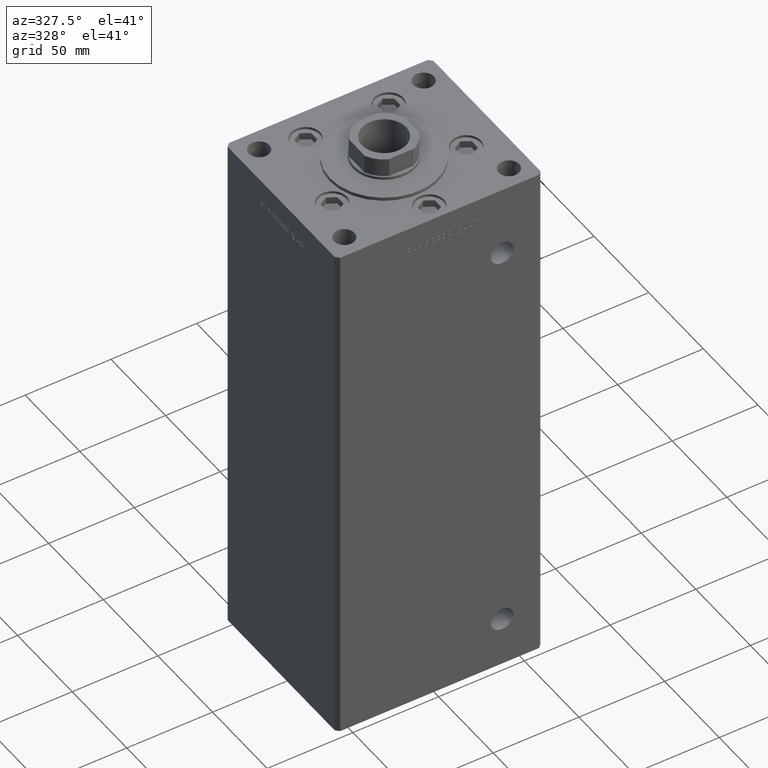
[diagram: clean part render]
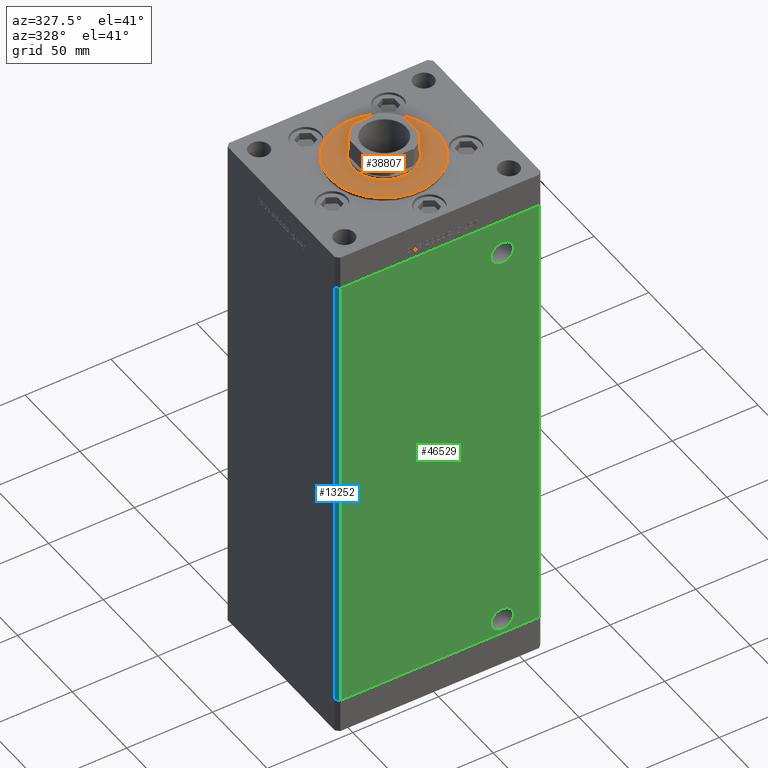
[diagram: same view with three faces highlighted in distinct colors, each labeled with its STEP entity id]
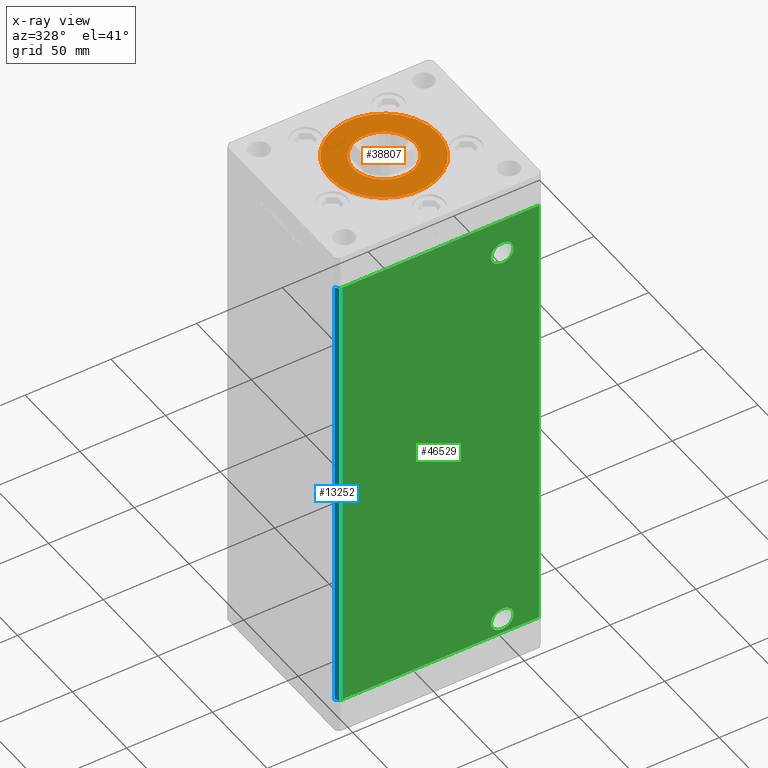
[diagram: x-ray of the same camera — body ghosted, the three highlighted faces saturated]
A machine part, auxiliary view with three faces highlighted in distinct colors.
The next image is the same camera in x-ray (body ghosted, the three faces saturated) — at least one of them is partly hidden behind the body in this view.
Their STEP definitions:

[orange] entity #38807 — the highlighted planar face has unit normal (0, 0, 1).
#1723 = CIRCLE ( 'NONE', #27851, 18.00000000000000000 ) ;
#5282 = EDGE_CURVE ( 'NONE', #35273, #38310, #17439, .T. ) ;
#6371 = DIRECTION ( 'NONE',  ( 1.000000000000000000, 0.000000000000000000, 0.000000000000000000 ) ) ;
#9182 = VERTEX_POINT ( 'NONE', #37426 ) ;
#11420 = ORIENTED_EDGE ( 'NONE', *, *, #5282, .T. ) ;
#13288 = DIRECTION ( 'NONE',  ( 0.000000000000000000, 0.000000000000000000, 1.000000000000000000 ) ) ;
#13539 = EDGE_CURVE ( 'NONE', #41007, #9182, #1723, .T. ) ;
#17439 = CIRCLE ( 'NONE', #24159, 31.50000000000000000 ) ;
#20567 = AXIS2_PLACEMENT_3D ( 'NONE', #23217, #39281, #6371 ) ;
#22363 = CARTESIAN_POINT ( 'NONE',  ( 0.000000000000000000, -6.938893903907228378E-15, 2.000000000000000000 ) ) ;
#22764 = DIRECTION ( 'NONE',  ( 1.000000000000000000, 0.000000000000000000, 0.000000000000000000 ) ) ;
#23217 = CARTESIAN_POINT ( 'NONE',  ( 0.000000000000000000, -6.938893903907228378E-15, 2.000000000000000000 ) ) ;
#24159 = AXIS2_PLACEMENT_3D ( 'NONE', #26135, #30854, #34812 ) ;
#24902 = EDGE_LOOP ( 'NONE', ( #35949, #38065 ) ) ;
#26135 = CARTESIAN_POINT ( 'NONE',  ( 0.000000000000000000, -6.938893903907228378E-15, 2.000000000000000000 ) ) ;
#26970 = CARTESIAN_POINT ( 'NONE',  ( 0.000000000000000000, -6.938893903907228378E-15, 2.000000000000000000 ) ) ;
#27174 = EDGE_CURVE ( 'NONE', #38310, #35273, #28110, .T. ) ;
#27851 = AXIS2_PLACEMENT_3D ( 'NONE', #26970, #35132, #22764 ) ;
#28110 = CIRCLE ( 'NONE', #20567, 31.50000000000000000 ) ;
#28848 = DIRECTION ( 'NONE',  ( 1.000000000000000000, 0.000000000000000000, 0.000000000000000000 ) ) ;
#29359 = CARTESIAN_POINT ( 'NONE',  ( 0.000000000000000000, -6.938893903907228378E-15, 2.000000000000000000 ) ) ;
#30182 = AXIS2_PLACEMENT_3D ( 'NONE', #29359, #13288, #28848 ) ;
#30521 = FACE_OUTER_BOUND ( 'NONE', #38542, .T. ) ;
#30854 = DIRECTION ( 'NONE',  ( 0.000000000000000000, 0.000000000000000000, 1.000000000000000000 ) ) ;
#34063 = CARTESIAN_POINT ( 'NONE',  ( -18.00000000000000000, -4.734529665441992555E-15, 2.000000000000000000 ) ) ;
#34224 = PLANE ( 'NONE',  #35143 ) ;
#34812 = DIRECTION ( 'NONE',  ( 1.000000000000000000, 0.000000000000000000, 0.000000000000000000 ) ) ;
#35132 = DIRECTION ( 'NONE',  ( 0.000000000000000000, 0.000000000000000000, 1.000000000000000000 ) ) ;
#35143 = AXIS2_PLACEMENT_3D ( 'NONE', #22363, #41614, #50305 ) ;
#35273 = VERTEX_POINT ( 'NONE', #44564 ) ;
#35376 = CARTESIAN_POINT ( 'NONE',  ( 31.50000000000000000, -3.081256486593065689E-15, 2.000000000000000000 ) ) ;
#35949 = ORIENTED_EDGE ( 'NONE', *, *, #44857, .F. ) ;
#37426 = CARTESIAN_POINT ( 'NONE',  ( 18.00000000000000000, -6.938893903907228378E-15, 2.000000000000000000 ) ) ;
#37482 = ORIENTED_EDGE ( 'NONE', *, *, #27174, .T. ) ;
#37662 = FACE_BOUND ( 'NONE', #24902, .T. ) ;
#38065 = ORIENTED_EDGE ( 'NONE', *, *, #13539, .F. ) ;
#38310 = VERTEX_POINT ( 'NONE', #35376 ) ;
#38542 = EDGE_LOOP ( 'NONE', ( #11420, #37482 ) ) ;
#38807 = ADVANCED_FACE ( 'NONE', ( #37662, #30521 ), #34224, .T. ) ;
#39281 = DIRECTION ( 'NONE',  ( 0.000000000000000000, 0.000000000000000000, 1.000000000000000000 ) ) ;
#41007 = VERTEX_POINT ( 'NONE', #34063 ) ;
#41614 = DIRECTION ( 'NONE',  ( 0.000000000000000000, 0.000000000000000000, 1.000000000000000000 ) ) ;
#44564 = CARTESIAN_POINT ( 'NONE',  ( -31.50000000000000000, -6.938893903907228378E-15, 2.000000000000000000 ) ) ;
#44857 = EDGE_CURVE ( 'NONE', #9182, #41007, #49578, .T. ) ;
#49578 = CIRCLE ( 'NONE', #30182, 18.00000000000000000 ) ;
#50305 = DIRECTION ( 'NONE',  ( 1.000000000000000000, 0.000000000000000000, -0.000000000000000000 ) ) ;

[blue] entity #13252 — the highlighted planar face has unit normal (0.7071, 0.7071, 0).
#4102 = LINE ( 'NONE', #21218, #34359 ) ;
#8977 = CARTESIAN_POINT ( 'NONE',  ( -59.99999999999998579, -49.00000000000000000, 0.000000000000000000 ) ) ;
#9659 = DIRECTION ( 'NONE',  ( 0.7071067811865475727, 0.7071067811865475727, -0.000000000000000000 ) ) ;
#10038 = EDGE_CURVE ( 'NONE', #14847, #20280, #16626, .T. ) ;
#10562 = CARTESIAN_POINT ( 'NONE',  ( -57.99999999999997868, -51.00000000000000711, 0.000000000000000000 ) ) ;
#11087 = VERTEX_POINT ( 'NONE', #49511 ) ;
#11677 = EDGE_CURVE ( 'NONE', #11756, #11087, #46478, .T. ) ;
#11756 = VERTEX_POINT ( 'NONE', #15864 ) ;
#12722 = EDGE_CURVE ( 'NONE', #11087, #20280, #46427, .T. ) ;
#13252 = ADVANCED_FACE ( 'NONE', ( #45782 ), #50250, .F. ) ;
#14137 = CARTESIAN_POINT ( 'NONE',  ( -59.99999999999998579, -49.00000000000000000, 268.5000000000000000 ) ) ;
#14313 = VECTOR ( 'NONE', #50426, 1000.000000000000114 ) ;
#14353 = AXIS2_PLACEMENT_3D ( 'NONE', #14137, #9659, #46554 ) ;
#14847 = VERTEX_POINT ( 'NONE', #24404 ) ;
#15864 = CARTESIAN_POINT ( 'NONE',  ( -59.99999999999998579, -49.00000000000000000, 268.5000000000000000 ) ) ;
#16626 = LINE ( 'NONE', #8977, #48801 ) ;
#18827 = ORIENTED_EDGE ( 'NONE', *, *, #10038, .T. ) ;
#19163 = ORIENTED_EDGE ( 'NONE', *, *, #39847, .T. ) ;
#20280 = VERTEX_POINT ( 'NONE', #10562 ) ;
#21218 = CARTESIAN_POINT ( 'NONE',  ( -59.99999999999998579, -49.00000000000000000, 268.5000000000000000 ) ) ;
#24404 = CARTESIAN_POINT ( 'NONE',  ( -59.99999999999998579, -49.00000000000000000, 0.000000000000000000 ) ) ;
#26382 = DIRECTION ( 'NONE',  ( -0.000000000000000000, -0.000000000000000000, -1.000000000000000000 ) ) ;
#26895 = CARTESIAN_POINT ( 'NONE',  ( -57.99999999999997868, -51.00000000000000711, 268.5000000000000000 ) ) ;
#29008 = DIRECTION ( 'NONE',  ( 0.7071067811865474617, -0.7071067811865474617, 0.000000000000000000 ) ) ;
#32875 = VECTOR ( 'NONE', #26382, 1000.000000000000000 ) ;
#34359 = VECTOR ( 'NONE', #44676, 1000.000000000000000 ) ;
#37070 = ORIENTED_EDGE ( 'NONE', *, *, #11677, .F. ) ;
#39847 = EDGE_CURVE ( 'NONE', #11756, #14847, #4102, .T. ) ;
#42662 = ORIENTED_EDGE ( 'NONE', *, *, #12722, .F. ) ;
#44676 = DIRECTION ( 'NONE',  ( -0.000000000000000000, -0.000000000000000000, -1.000000000000000000 ) ) ;
#45223 = EDGE_LOOP ( 'NONE', ( #18827, #42662, #37070, #19163 ) ) ;
#45782 = FACE_OUTER_BOUND ( 'NONE', #45223, .T. ) ;
#46216 = CARTESIAN_POINT ( 'NONE',  ( -59.99999999999998579, -49.00000000000000000, 268.5000000000000000 ) ) ;
#46427 = LINE ( 'NONE', #26895, #32875 ) ;
#46478 = LINE ( 'NONE', #46216, #14313 ) ;
#46554 = DIRECTION ( 'NONE',  ( -0.7071067811865474617, 0.7071067811865474617, 0.000000000000000000 ) ) ;
#48801 = VECTOR ( 'NONE', #29008, 1000.000000000000114 ) ;
#49511 = CARTESIAN_POINT ( 'NONE',  ( -57.99999999999997868, -51.00000000000000711, 268.5000000000000000 ) ) ;
#50250 = PLANE ( 'NONE',  #14353 ) ;
#50426 = DIRECTION ( 'NONE',  ( 0.7071067811865474617, -0.7071067811865474617, 0.000000000000000000 ) ) ;

[green] entity #46529 — the highlighted planar face has unit normal (0, 1, 0).
#434 = CARTESIAN_POINT ( 'NONE',  ( 36.49999999999995737, -51.00000000000000711, 240.9199999999999875 ) ) ;
#513 = CIRCLE ( 'NONE', #11435, 6.580000000000002736 ) ;
#936 = AXIS2_PLACEMENT_3D ( 'NONE', #17640, #30275, #25295 ) ;
#1134 = EDGE_CURVE ( 'NONE', #18266, #5466, #513, .T. ) ;
#1574 = CARTESIAN_POINT ( 'NONE',  ( 36.49999999999998579, -51.00000000000000711, 9.000000000000007105 ) ) ;
#2009 = DIRECTION ( 'NONE',  ( 0.000000000000000000, -0.000000000000000000, 1.000000000000000000 ) ) ;
#2091 = DIRECTION ( 'NONE',  ( 0.000000000000000000, -1.000000000000000000, 0.000000000000000000 ) ) ;
#2259 = PLANE ( 'NONE',  #52125 ) ;
#3229 = FACE_BOUND ( 'NONE', #49443, .T. ) ;
#4100 = EDGE_CURVE ( 'NONE', #46676, #30248, #45442, .T. ) ;
#5466 = VERTEX_POINT ( 'NONE', #45076 ) ;
#5859 = DIRECTION ( 'NONE',  ( 1.000000000000000000, 0.000000000000000000, 0.000000000000000000 ) ) ;
#6217 = FACE_BOUND ( 'NONE', #25564, .T. ) ;
#8464 = DIRECTION ( 'NONE',  ( -0.000000000000000000, 1.000000000000000000, -0.000000000000000000 ) ) ;
#8679 = ORIENTED_EDGE ( 'NONE', *, *, #15316, .T. ) ;
#8928 = ORIENTED_EDGE ( 'NONE', *, *, #12722, .T. ) ;
#8955 = EDGE_CURVE ( 'NONE', #20280, #30248, #34566, .T. ) ;
#9777 = CARTESIAN_POINT ( 'NONE',  ( 57.99999999999997868, -51.00000000000000711, 268.5000000000000000 ) ) ;
#10562 = CARTESIAN_POINT ( 'NONE',  ( -57.99999999999997868, -51.00000000000000711, 0.000000000000000000 ) ) ;
#11087 = VERTEX_POINT ( 'NONE', #49511 ) ;
#11435 = AXIS2_PLACEMENT_3D ( 'NONE', #25270, #32655, #41087 ) ;
#11749 = ORIENTED_EDGE ( 'NONE', *, *, #4100, .F. ) ;
#12402 = ORIENTED_EDGE ( 'NONE', *, *, #1134, .T. ) ;
#12722 = EDGE_CURVE ( 'NONE', #11087, #20280, #46427, .T. ) ;
#13028 = CARTESIAN_POINT ( 'NONE',  ( 57.99999999999997868, -51.00000000000000711, 268.5000000000000000 ) ) ;
#13681 = VECTOR ( 'NONE', #30298, 1000.000000000000000 ) ;
#14081 = VECTOR ( 'NONE', #29097, 1000.000000000000000 ) ;
#15316 = EDGE_CURVE ( 'NONE', #5466, #18266, #22002, .T. ) ;
#16000 = VERTEX_POINT ( 'NONE', #33294 ) ;
#17390 = DIRECTION ( 'NONE',  ( 0.000000000000000000, 0.000000000000000000, -1.000000000000000000 ) ) ;
#17640 = CARTESIAN_POINT ( 'NONE',  ( 36.49999999999998579, -51.00000000000000711, 9.000000000000007105 ) ) ;
#17718 = EDGE_CURVE ( 'NONE', #11087, #46676, #34261, .T. ) ;
#18109 = CARTESIAN_POINT ( 'NONE',  ( 36.49999999999998579, -51.00000000000000711, 15.58000000000000362 ) ) ;
#18266 = VERTEX_POINT ( 'NONE', #434 ) ;
#19619 = CARTESIAN_POINT ( 'NONE',  ( 57.99999999999997868, -51.00000000000000711, 0.000000000000000000 ) ) ;
#20280 = VERTEX_POINT ( 'NONE', #10562 ) ;
#21518 = DIRECTION ( 'NONE',  ( 0.000000000000000000, 1.000000000000000000, 0.000000000000000000 ) ) ;
#22002 = CIRCLE ( 'NONE', #37161, 6.580000000000002736 ) ;
#22390 = ORIENTED_EDGE ( 'NONE', *, *, #23434, .F. ) ;
#23171 = CARTESIAN_POINT ( 'NONE',  ( -57.99999999999997868, -51.00000000000000711, 268.5000000000000000 ) ) ;
#23434 = EDGE_CURVE ( 'NONE', #24493, #16000, #51714, .T. ) ;
#23502 = VECTOR ( 'NONE', #5859, 1000.000000000000000 ) ;
#24493 = VERTEX_POINT ( 'NONE', #18109 ) ;
#25270 = CARTESIAN_POINT ( 'NONE',  ( 36.49999999999995737, -51.00000000000000711, 247.5000000000000000 ) ) ;
#25295 = DIRECTION ( 'NONE',  ( 0.000000000000000000, 0.000000000000000000, -1.000000000000000000 ) ) ;
#25564 = EDGE_LOOP ( 'NONE', ( #41407, #22390 ) ) ;
#26382 = DIRECTION ( 'NONE',  ( -0.000000000000000000, -0.000000000000000000, -1.000000000000000000 ) ) ;
#26895 = CARTESIAN_POINT ( 'NONE',  ( -57.99999999999997868, -51.00000000000000711, 268.5000000000000000 ) ) ;
#27022 = CIRCLE ( 'NONE', #936, 6.579999999999994742 ) ;
#27948 = ORIENTED_EDGE ( 'NONE', *, *, #8955, .T. ) ;
#28114 = AXIS2_PLACEMENT_3D ( 'NONE', #1574, #2091, #17390 ) ;
#29097 = DIRECTION ( 'NONE',  ( -0.000000000000000000, -0.000000000000000000, -1.000000000000000000 ) ) ;
#30248 = VERTEX_POINT ( 'NONE', #19619 ) ;
#30275 = DIRECTION ( 'NONE',  ( 0.000000000000000000, -1.000000000000000000, 0.000000000000000000 ) ) ;
#30298 = DIRECTION ( 'NONE',  ( 1.000000000000000000, 0.000000000000000000, 0.000000000000000000 ) ) ;
#30366 = CARTESIAN_POINT ( 'NONE',  ( 36.49999999999995737, -51.00000000000000711, 247.5000000000000000 ) ) ;
#32655 = DIRECTION ( 'NONE',  ( -0.000000000000000000, 1.000000000000000000, -0.000000000000000000 ) ) ;
#32875 = VECTOR ( 'NONE', #26382, 1000.000000000000000 ) ;
#33294 = CARTESIAN_POINT ( 'NONE',  ( 36.49999999999998579, -51.00000000000000711, 2.420000000000013252 ) ) ;
#34261 = LINE ( 'NONE', #23171, #13681 ) ;
#34566 = LINE ( 'NONE', #42729, #23502 ) ;
#35758 = EDGE_LOOP ( 'NONE', ( #27948, #11749, #51895, #8928 ) ) ;
#37161 = AXIS2_PLACEMENT_3D ( 'NONE', #30366, #8464, #48531 ) ;
#41087 = DIRECTION ( 'NONE',  ( 0.000000000000000000, 0.000000000000000000, -1.000000000000000000 ) ) ;
#41407 = ORIENTED_EDGE ( 'NONE', *, *, #51451, .F. ) ;
#42729 = CARTESIAN_POINT ( 'NONE',  ( -57.99999999999997868, -51.00000000000000711, 0.000000000000000000 ) ) ;
#45076 = CARTESIAN_POINT ( 'NONE',  ( 36.49999999999995737, -51.00000000000000711, 254.0799999999999841 ) ) ;
#45442 = LINE ( 'NONE', #13028, #14081 ) ;
#45504 = CARTESIAN_POINT ( 'NONE',  ( -57.99999999999997868, -51.00000000000000711, 268.5000000000000000 ) ) ;
#46427 = LINE ( 'NONE', #26895, #32875 ) ;
#46529 = ADVANCED_FACE ( 'NONE', ( #6217, #46542, #3229 ), #2259, .F. ) ;
#46542 = FACE_OUTER_BOUND ( 'NONE', #35758, .T. ) ;
#46676 = VERTEX_POINT ( 'NONE', #9777 ) ;
#48531 = DIRECTION ( 'NONE',  ( 0.000000000000000000, 0.000000000000000000, -1.000000000000000000 ) ) ;
#49443 = EDGE_LOOP ( 'NONE', ( #12402, #8679 ) ) ;
#49511 = CARTESIAN_POINT ( 'NONE',  ( -57.99999999999997868, -51.00000000000000711, 268.5000000000000000 ) ) ;
#51451 = EDGE_CURVE ( 'NONE', #16000, #24493, #27022, .T. ) ;
#51714 = CIRCLE ( 'NONE', #28114, 6.579999999999994742 ) ;
#51895 = ORIENTED_EDGE ( 'NONE', *, *, #17718, .F. ) ;
#52125 = AXIS2_PLACEMENT_3D ( 'NONE', #45504, #21518, #2009 ) ;